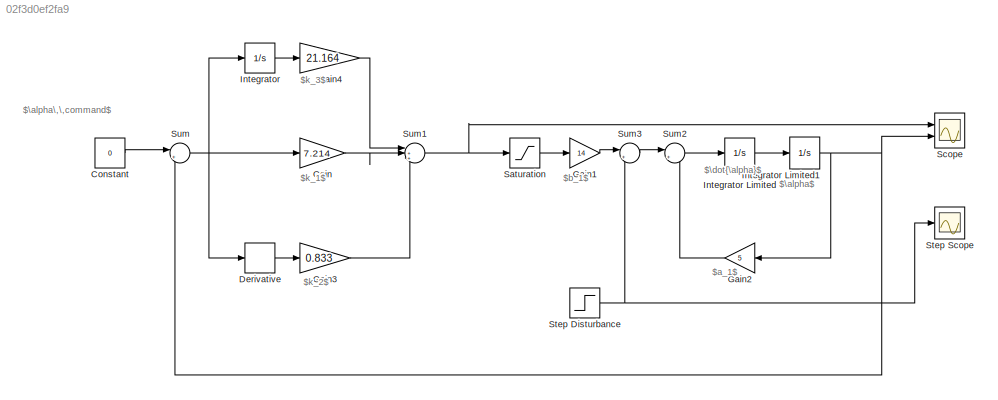
MODEL slx_02f3d0ef2fa9
KIND model
CONFIG AbsTol = auto
CONFIG EnableMultiTasking = off
CONFIG FixedStep = 0.001
CONFIG MaxStep = auto
CONFIG MinStep = auto
CONFIG RelTol = 1e-3
CONFIG SampleTimeConstraint = Unconstrained
CONFIG Solver = FixedStepAuto
CONFIG SolverName = FixedStepAuto
CONFIG StartTime = 0.0
CONFIG StopTime = 7
BLOCK [Constant] Constant
  Value = 0
BLOCK [Derivative] Derivative
BLOCK [Gain] Gain
  Gain = 7.214
  OutDataTypeStr = Inherit: Inherit via internal rule
  ParamDataTypeStr = Inherit: Inherit via internal rule
  SaturateOnIntegerOverflow = off
BLOCK [Gain] Gain1
  Gain = 14
  OutDataTypeStr = Inherit: Inherit via internal rule
  ParamDataTypeStr = Inherit: Inherit via internal rule
  SaturateOnIntegerOverflow = off
BLOCK [Gain] Gain2
  Gain = 5
  OutDataTypeStr = Inherit: Inherit via internal rule
  ParamDataTypeStr = Inherit: Inherit via internal rule
  SaturateOnIntegerOverflow = off
BLOCK [Gain] Gain3
  Gain = 0.833
  OutDataTypeStr = Inherit: Inherit via internal rule
  ParamDataTypeStr = Inherit: Inherit via internal rule
  SaturateOnIntegerOverflow = off
BLOCK [Gain] Gain4
  Gain = 21.164
  OutDataTypeStr = Inherit: Inherit via internal rule
  ParamDataTypeStr = Inherit: Inherit via internal rule
  SaturateOnIntegerOverflow = off
BLOCK [Integrator] Integrator
  Ports = [1, 1]
BLOCK [Integrator] Integrator Limited
  InitialCondition = 0.5
  LimitOutput = on
  LowerSaturationLimit = -pi/6
  Ports = [1, 1]
  UpperSaturationLimit = pi/6
BLOCK [Integrator] Integrator Limited1
  InitialCondition = 0.1
  LimitOutput = on
  LowerSaturationLimit = -pi/6
  Ports = [1, 1]
  UpperSaturationLimit = pi/6
BLOCK [Saturate] Saturation
  InputPortMap = u0
  LowerLimit = -pi/6
  Ports = [1, 1]
  UpperLimit = pi/6
BLOCK [Scope] Scope
  Floating = off
  NumInputPorts = 2
  Ports = [2]
  ScopeSpecificationString = Simulink.scopes.TimeScopeBlockCfg('CurrentConfiguration', extmgr.ConfigurationSet(extmgr.Configuration('Core','General UI',true),extmgr.Configuration('Core','Source UI',true),extmgr.Configuration('Sources','WiredSimulink',true,'DataLogging',true,'DataLoggingSaveFormat','StructureWithTime','DataLoggingVariableName','pid_3_5_scope'),extmgr.Configuration('Visuals','Time Domain',true,'SerializedDispla...<+1547ch>
BLOCK [Step] Step Disturbance
  After = 3.5
  SampleTime = 0
  Time = 4
BLOCK [Scope] Step Scope
  Floating = off
  NumInputPorts = 1
  Ports = [1]
  ScopeSpecificationString = Simulink.scopes.TimeScopeBlockCfg('CurrentConfiguration', extmgr.ConfigurationSet(extmgr.Configuration('Core','General UI',true),extmgr.Configuration('Core','Source UI',true),extmgr.Configuration('Sources','WiredSimulink',true,'DataLogging',true,'DataLoggingVariableName','pid_3_5_step','DataLoggingSaveFormat','StructureWithTime'),extmgr.Configuration('Visuals','Time Domain',true,'SerializedDisplay...<+1434ch>
BLOCK [Sum] Sum
  IconShape = round
  InputSameDT = off
  Inputs = |+-
  OutDataTypeStr = Inherit: Inherit via internal rule
  Ports = [2, 1]
  SaturateOnIntegerOverflow = off
BLOCK [Sum] Sum1
  IconShape = round
  InputSameDT = off
  Inputs = |+++
  OutDataTypeStr = Inherit: Inherit via internal rule
  Ports = [3, 1]
  SaturateOnIntegerOverflow = off
BLOCK [Sum] Sum2
  IconShape = round
  InputSameDT = off
  Inputs = |++
  OutDataTypeStr = Inherit: Inherit via internal rule
  Ports = [2, 1]
  SaturateOnIntegerOverflow = off
BLOCK [Sum] Sum3
  IconShape = round
  InputSameDT = off
  Inputs = |++
  OutDataTypeStr = Inherit: Inherit via internal rule
  Ports = [2, 1]
  SaturateOnIntegerOverflow = off
ANNOTATION (root): $\alpha$
ANNOTATION (root): $\alpha\,\,command$
ANNOTATION (root): $\dot{\alpha}$
ANNOTATION (root): $a_1$
ANNOTATION (root): $b_1$
ANNOTATION (root): $k_1$
ANNOTATION (root): $k_2$
ANNOTATION (root): $k_3$
LINE Constant:1 -> Sum:1
LINE Derivative:1 -> Gain3:1
LINE Gain1:1 -> Sum3:1
LINE Gain2:1 -> Sum2:2
LINE Gain3:1 -> Sum1:3
LINE Gain4:1 -> Sum1:1
LINE Gain:1 -> Sum1:2
NET Integrator Limited1:1 -> Gain2:1, Scope:2, Sum:2
LINE Integrator Limited:1 -> Integrator Limited1:1
LINE Integrator:1 -> Gain4:1
LINE Saturation:1 -> Gain1:1
NET Step Disturbance:1 -> Step Scope:1, Sum3:2
NET Sum1:1 -> Saturation:1, Scope:1
LINE Sum2:1 -> Integrator Limited:1
LINE Sum3:1 -> Sum2:1
NET Sum:1 -> Derivative:1, Gain:1, Integrator:1
note: NET lines group one-source signal fan-out (src -> all destinations, sorted); 1:1 wires keep LINE
